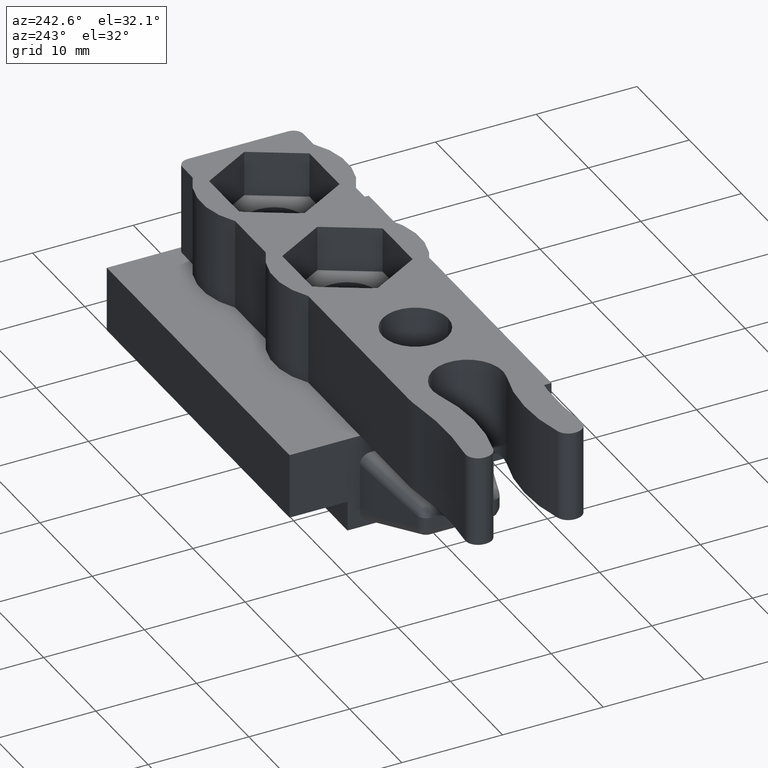
[diagram: clean part render]
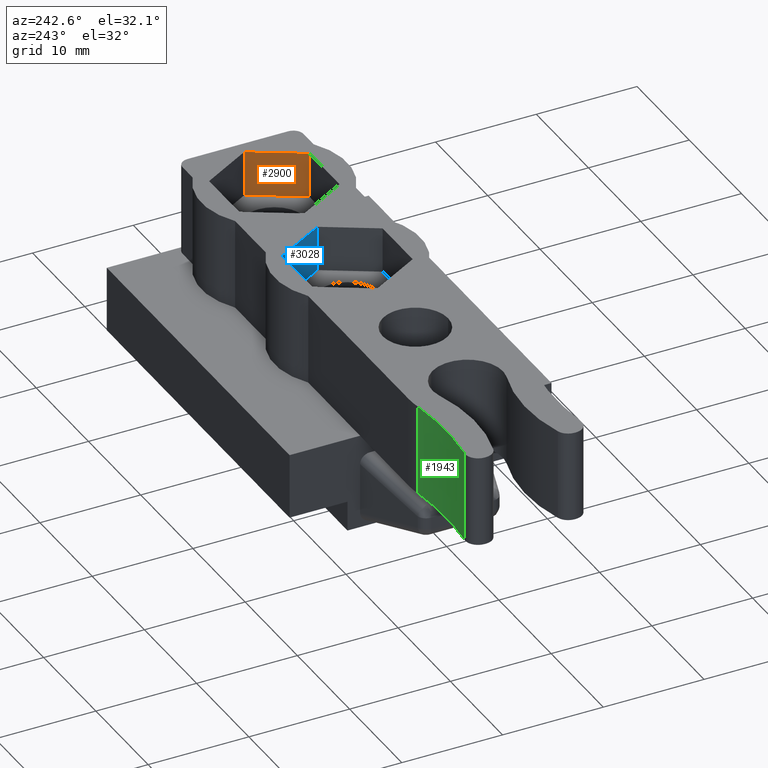
[diagram: same view with three faces highlighted in distinct colors, each labeled with its STEP entity id]
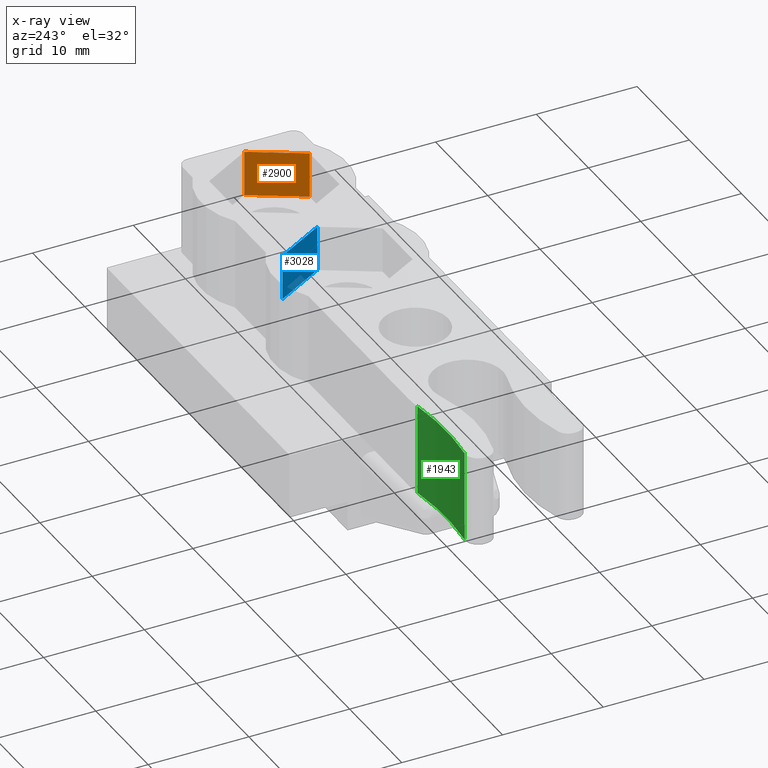
[diagram: x-ray of the same camera — body ghosted, the three highlighted faces saturated]
A machine part, auxiliary view with three faces highlighted in distinct colors.
The next image is the same camera in x-ray (body ghosted, the three faces saturated) — at least one of them is partly hidden behind the body in this view.
Their STEP definitions:

[orange] entity #2900 — the highlighted planar face has unit normal (0.866, -0.5, 0).
#580=CARTESIAN_POINT('',(-1.250000000000000,4.440892E-015,18.500000000000000));
#581=VERTEX_POINT('',#580);
#588=CARTESIAN_POINT('',(-4.125000000000000,-4.979646071760527,18.500000000000000));
#589=VERTEX_POINT('',#588);
#590=CARTESIAN_POINT('',(-4.125000000000000,-4.979646071760527,18.500000000000000));
#591=DIRECTION('',(0.500000000000001,0.866025403784438,0.0));
#592=VECTOR('',#591,5.750000000000009);
#593=LINE('',#590,#592);
#594=EDGE_CURVE('',#589,#581,#593,.T.);
#2783=CARTESIAN_POINT('',(-4.125000000000000,-4.979646071760527,14.0));
#2784=VERTEX_POINT('',#2783);
#2791=CARTESIAN_POINT('',(-1.250000000000000,4.440892E-015,14.0));
#2792=VERTEX_POINT('',#2791);
#2793=CARTESIAN_POINT('',(-4.125000000000000,-4.979646071760527,14.0));
#2794=DIRECTION('',(0.500000000000001,0.866025403784438,0.0));
#2795=VECTOR('',#2794,5.750000000000009);
#2796=LINE('',#2793,#2795);
#2797=EDGE_CURVE('',#2784,#2792,#2796,.T.);
#2875=CARTESIAN_POINT('',(-1.250000000000000,4.440892E-015,14.0));
#2876=DIRECTION('',(0.0,0.0,1.0));
#2877=VECTOR('',#2876,4.500000000000000);
#2878=LINE('',#2875,#2877);
#2879=EDGE_CURVE('',#2792,#581,#2878,.T.);
#2884=CARTESIAN_POINT('',(-4.268750000000001,-5.228628375348553,13.775000000000000));
#2885=DIRECTION('',(0.866025403784438,-0.500000000000000,0.0));
#2886=DIRECTION('',(0.500000000000000,0.866025403784438,0.0));
#2887=AXIS2_PLACEMENT_3D('',#2884,#2885,#2886);
#2888=PLANE('',#2887);
#2889=ORIENTED_EDGE('',*,*,#594,.T.);
#2890=ORIENTED_EDGE('',*,*,#2879,.F.);
#2891=ORIENTED_EDGE('',*,*,#2797,.F.);
#2892=CARTESIAN_POINT('',(-4.125000000000000,-4.979646071760527,14.0));
#2893=DIRECTION('',(0.0,0.0,1.0));
#2894=VECTOR('',#2893,4.500000000000000);
#2895=LINE('',#2892,#2894);
#2896=EDGE_CURVE('',#2784,#589,#2895,.T.);
#2897=ORIENTED_EDGE('',*,*,#2896,.T.);
#2898=EDGE_LOOP('',(#2889,#2890,#2891,#2897));
#2899=FACE_OUTER_BOUND('',#2898,.T.);
#2900=ADVANCED_FACE('',(#2899),#2888,.F.);

[blue] entity #3028 — the highlighted planar face has unit normal (0.866, 0.5, 0).
#514=CARTESIAN_POINT('',(-18.125000000000036,4.979646071760520,18.500000000000000));
#515=VERTEX_POINT('',#514);
#522=CARTESIAN_POINT('',(-15.250000000000028,4.440892E-015,18.500000000000000));
#523=VERTEX_POINT('',#522);
#524=CARTESIAN_POINT('',(-15.250000000000028,4.440892E-015,18.500000000000000));
#525=DIRECTION('',(-0.500000000000001,0.866025403784438,0.0));
#526=VECTOR('',#525,5.750000000000001);
#527=LINE('',#524,#526);
#528=EDGE_CURVE('',#523,#515,#527,.T.);
#2961=CARTESIAN_POINT('',(-15.250000000000028,4.440892E-015,14.0));
#2962=VERTEX_POINT('',#2961);
#2969=CARTESIAN_POINT('',(-18.125000000000036,4.979646071760523,14.0));
#2970=VERTEX_POINT('',#2969);
#2971=CARTESIAN_POINT('',(-15.250000000000028,4.440892E-015,14.0));
#2972=DIRECTION('',(-0.500000000000001,0.866025403784438,0.0));
#2973=VECTOR('',#2972,5.750000000000001);
#2974=LINE('',#2971,#2973);
#2975=EDGE_CURVE('',#2962,#2970,#2974,.T.);
#3003=CARTESIAN_POINT('',(-18.125000000000036,4.979646071760523,14.0));
#3004=DIRECTION('',(0.0,0.0,1.0));
#3005=VECTOR('',#3004,4.500000000000000);
#3006=LINE('',#3003,#3005);
#3007=EDGE_CURVE('',#2970,#515,#3006,.T.);
#3012=CARTESIAN_POINT('',(-15.106250000000028,-0.248982303588022,13.775000000000000));
#3013=DIRECTION('',(0.866025403784438,0.500000000000000,0.0));
#3014=DIRECTION('',(-0.500000000000000,0.866025403784438,0.0));
#3015=AXIS2_PLACEMENT_3D('',#3012,#3013,#3014);
#3016=PLANE('',#3015);
#3017=ORIENTED_EDGE('',*,*,#528,.T.);
#3018=ORIENTED_EDGE('',*,*,#3007,.F.);
#3019=ORIENTED_EDGE('',*,*,#2975,.F.);
#3020=CARTESIAN_POINT('',(-15.250000000000028,4.440892E-015,14.0));
#3021=DIRECTION('',(0.0,0.0,1.0));
#3022=VECTOR('',#3021,4.500000000000000);
#3023=LINE('',#3020,#3022);
#3024=EDGE_CURVE('',#2962,#523,#3023,.T.);
#3025=ORIENTED_EDGE('',*,*,#3024,.T.);
#3026=EDGE_LOOP('',(#3017,#3018,#3019,#3025));
#3027=FACE_OUTER_BOUND('',#3026,.T.);
#3028=ADVANCED_FACE('',(#3027),#3016,.F.);

[green] entity #1943 — the highlighted cylindrical surface (partial cylindrical patch) has radius 30.5 mm, axis along (0, 0, -1).
#477=CARTESIAN_POINT('',(-45.722203208436198,5.876543194964304,18.500000000000000));
#478=VERTEX_POINT('',#477);
#486=CARTESIAN_POINT('',(-54.582677157082500,5.774485146207654,18.500000000000000));
#487=VERTEX_POINT('',#486);
#488=CARTESIAN_POINT('',(-50.500000444723796,35.999995108038391,18.500000000000000));
#489=DIRECTION('',(0.0,0.0,1.0));
#490=DIRECTION('',(-1.0,0.0,0.0));
#491=AXIS2_PLACEMENT_3D('',#488,#489,#490);
#492=CIRCLE('',#491,30.499995108038398);
#493=EDGE_CURVE('',#487,#478,#492,.T.);
#1008=CARTESIAN_POINT('',(-54.582677157082500,5.774485146207654,9.500000000000011));
#1009=VERTEX_POINT('',#1008);
#1017=CARTESIAN_POINT('',(-45.722203208436198,5.876543194964304,9.500000000000011));
#1018=VERTEX_POINT('',#1017);
#1019=CARTESIAN_POINT('',(-50.500000444723796,35.999995108038391,9.500000000000011));
#1020=DIRECTION('',(0.0,0.0,1.0));
#1021=DIRECTION('',(1.0,0.0,0.0));
#1022=AXIS2_PLACEMENT_3D('',#1019,#1020,#1021);
#1023=CIRCLE('',#1022,30.499995108038398);
#1024=EDGE_CURVE('',#1009,#1018,#1023,.T.);
#1918=CARTESIAN_POINT('',(-45.722203208436198,5.876543194964304,18.500000000000000));
#1919=DIRECTION('',(0.0,0.0,-1.0));
#1920=VECTOR('',#1919,8.999999999999986);
#1921=LINE('',#1918,#1920);
#1922=EDGE_CURVE('',#478,#1018,#1921,.T.);
#1927=CARTESIAN_POINT('',(-50.500000444723796,35.999995108038391,18.500000010000001));
#1928=DIRECTION('',(0.0,0.0,-1.0));
#1929=DIRECTION('',(1.0,0.0,0.0));
#1930=AXIS2_PLACEMENT_3D('',#1927,#1928,#1929);
#1931=CYLINDRICAL_SURFACE('',#1930,30.499995108038398);
#1932=ORIENTED_EDGE('',*,*,#1024,.F.);
#1933=CARTESIAN_POINT('',(-54.582677157082500,5.774485146207645,9.500000000000014));
#1934=DIRECTION('',(0.0,0.0,1.0));
#1935=VECTOR('',#1934,8.999999999999986);
#1936=LINE('',#1933,#1935);
#1937=EDGE_CURVE('',#1009,#487,#1936,.T.);
#1938=ORIENTED_EDGE('',*,*,#1937,.T.);
#1939=ORIENTED_EDGE('',*,*,#493,.T.);
#1940=ORIENTED_EDGE('',*,*,#1922,.T.);
#1941=EDGE_LOOP('',(#1932,#1938,#1939,#1940));
#1942=FACE_OUTER_BOUND('',#1941,.T.);
#1943=ADVANCED_FACE('',(#1942),#1931,.F.);